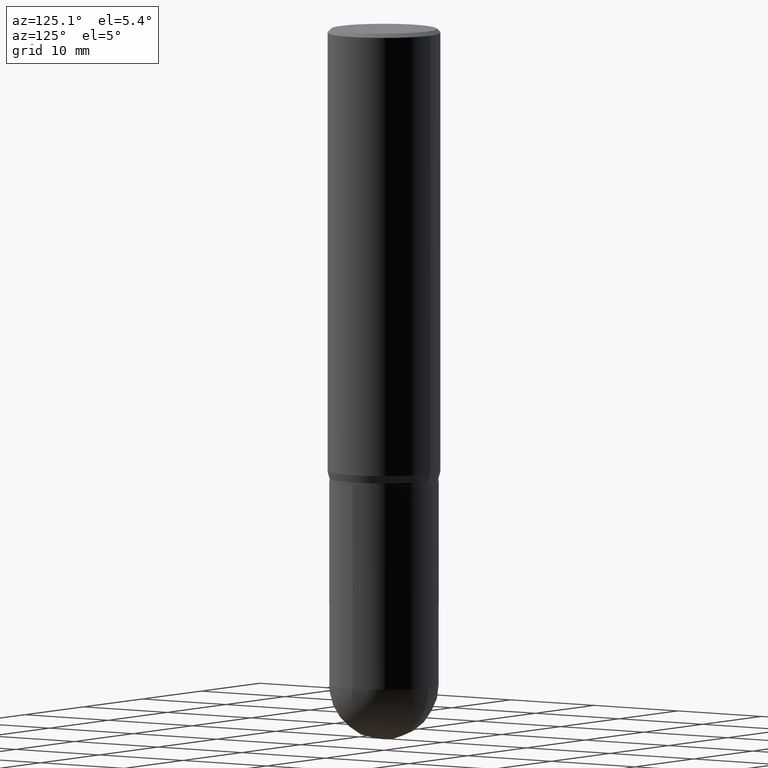
[diagram: clean part render]
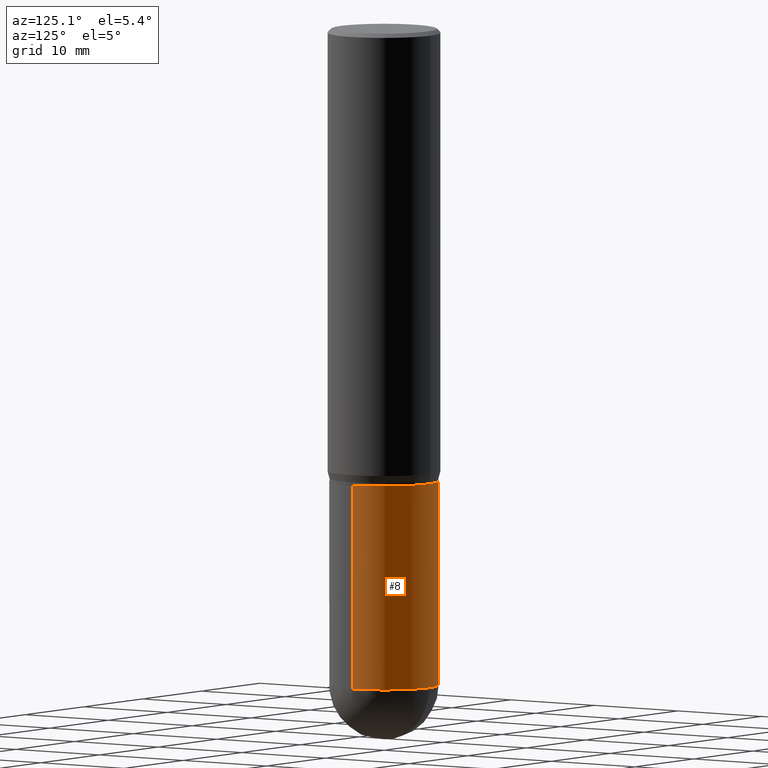
[diagram: same view with one face highlighted and labeled with its STEP entity id]
A machine part, auxiliary view. The second image highlights one B-rep face of the part: STEP entity #8.
In plain terms, the highlighted cylindrical surface (partial cylindrical patch) has radius 5.3581 mm, axis along (-0, 0, 1).
Its self-contained STEP definition (entity closure, byte-faithful):
#4 = DIRECTION ( 'NONE',  ( 1.000000000000000000, -6.982962677686265133E-15, 0.000000000000000000 ) ) ;
#8 = ADVANCED_FACE ( 'NONE', ( #235 ), #278, .T. ) ;
#29 = EDGE_CURVE ( 'NONE', #388, #317, #98, .T. ) ;
#41 = VECTOR ( 'NONE', #107, 39.37007874015748143 ) ;
#46 = ORIENTED_EDGE ( 'NONE', *, *, #354, .T. ) ;
#62 = VERTEX_POINT ( 'NONE', #116 ) ;
#65 = EDGE_CURVE ( 'NONE', #62, #215, #506, .T. ) ;
#68 = CARTESIAN_POINT ( 'NONE',  ( -0.2109500000000000541, 1.498889901085931727E-15, -1.037649357289272662E-29 ) ) ;
#77 = CARTESIAN_POINT ( 'NONE',  ( -0.2109500000000000541, -5.988679117096665555E-15, -2.539050000000000473 ) ) ;
#83 = ORIENTED_EDGE ( 'NONE', *, *, #302, .F. ) ;
#98 = CIRCLE ( 'NONE', #447, 0.2109500000000000541 ) ;
#107 = DIRECTION ( 'NONE',  ( -2.445468806185136877E-29, 3.491481338843145188E-15, 1.000000000000000000 ) ) ;
#113 = VECTOR ( 'NONE', #228, 39.37007874015748143 ) ;
#116 = CARTESIAN_POINT ( 'NONE',  ( 0.2109499999999999986, -7.583148319833423025E-15, -1.750000000000000000 ) ) ;
#118 = CARTESIAN_POINT ( 'NONE',  ( 6.209167572344372023E-29, -8.865045693389689499E-15, -2.539050000000000473 ) ) ;
#123 = AXIS2_PLACEMENT_3D ( 'NONE', #274, #320, #479 ) ;
#146 = CARTESIAN_POINT ( 'NONE',  ( 0.2109500000000000541, -1.473055976857918157E-15, 1.028629490854152908E-29 ) ) ;
#178 = LINE ( 'NONE', #146, #41 ) ;
#187 = ORIENTED_EDGE ( 'NONE', *, *, #65, .F. ) ;
#215 = VERTEX_POINT ( 'NONE', #365 ) ;
#228 = DIRECTION ( 'NONE',  ( -2.445468806185136877E-29, 3.491481338843145188E-15, 1.000000000000000000 ) ) ;
#234 = DIRECTION ( 'NONE',  ( 1.000000000000000000, -6.982962677686265922E-15, 4.876176775795935793E-29 ) ) ;
#235 = FACE_OUTER_BOUND ( 'NONE', #347, .T. ) ;
#237 = ORIENTED_EDGE ( 'NONE', *, *, #29, .T. ) ;
#260 = LINE ( 'NONE', #68, #113 ) ;
#273 = DIRECTION ( 'NONE',  ( 1.000000000000000000, -6.982962677686265133E-15, 0.000000000000000000 ) ) ;
#274 = CARTESIAN_POINT ( 'NONE',  ( 4.279570410823988484E-29, -6.110092342975504671E-15, -1.750000000000000000 ) ) ;
#276 = ORIENTED_EDGE ( 'NONE', *, *, #498, .T. ) ;
#278 = CYLINDRICAL_SURFACE ( 'NONE', #280, 0.2109500000000000541 ) ;
#280 = AXIS2_PLACEMENT_3D ( 'NONE', #358, #477, #234 ) ;
#302 = EDGE_CURVE ( 'NONE', #388, #62, #178, .T. ) ;
#317 = VERTEX_POINT ( 'NONE', #340 ) ;
#320 = DIRECTION ( 'NONE',  ( -2.445468806185136597E-29, 3.491481338843145583E-15, 1.000000000000000000 ) ) ;
#340 = CARTESIAN_POINT ( 'NONE',  ( 1.473055976857980082E-15, 0.2109499999999912001, -2.539050000000000917 ) ) ;
#347 = EDGE_LOOP ( 'NONE', ( #276, #46, #187, #83, #237 ) ) ;
#354 = EDGE_CURVE ( 'NONE', #419, #215, #260, .T. ) ;
#358 = CARTESIAN_POINT ( 'NONE',  ( 0.000000000000000000, 0.000000000000000000, 0.000000000000000000 ) ) ;
#365 = CARTESIAN_POINT ( 'NONE',  ( -0.2109499999999999986, -5.988679117096665555E-15, -1.750000000000000000 ) ) ;
#388 = VERTEX_POINT ( 'NONE', #460 ) ;
#419 = VERTEX_POINT ( 'NONE', #77 ) ;
#440 = DIRECTION ( 'NONE',  ( -2.445468806185136597E-29, 3.491481338843145583E-15, 1.000000000000000000 ) ) ;
#447 = AXIS2_PLACEMENT_3D ( 'NONE', #509, #440, #4 ) ;
#460 = CARTESIAN_POINT ( 'NONE',  ( 0.2109500000000000541, -8.960624995040515044E-15, -2.539050000000000473 ) ) ;
#464 = AXIS2_PLACEMENT_3D ( 'NONE', #118, #510, #273 ) ;
#477 = DIRECTION ( 'NONE',  ( -2.445468806185136597E-29, 3.491481338843145583E-15, 1.000000000000000000 ) ) ;
#479 = DIRECTION ( 'NONE',  ( 1.000000000000000000, -6.982962677686266711E-15, 0.000000000000000000 ) ) ;
#482 = CIRCLE ( 'NONE', #464, 0.2109500000000000541 ) ;
#498 = EDGE_CURVE ( 'NONE', #317, #419, #482, .T. ) ;
#506 = CIRCLE ( 'NONE', #123, 0.2109499999999999986 ) ;
#509 = CARTESIAN_POINT ( 'NONE',  ( 6.209167572344372023E-29, -8.865045693389689499E-15, -2.539050000000000473 ) ) ;
#510 = DIRECTION ( 'NONE',  ( -2.445468806185136597E-29, 3.491481338843145583E-15, 1.000000000000000000 ) ) ;